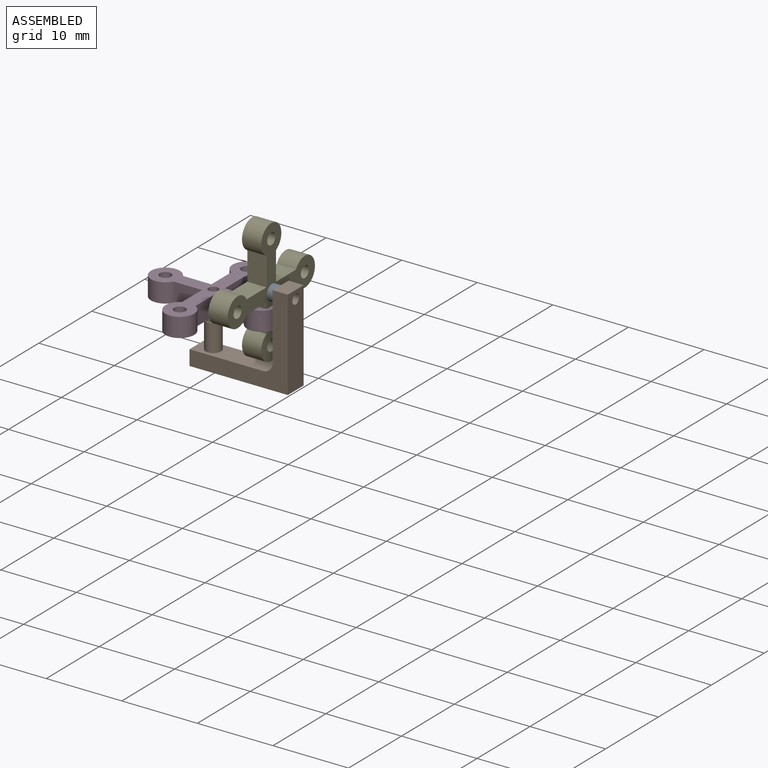
[diagram: assembled view]
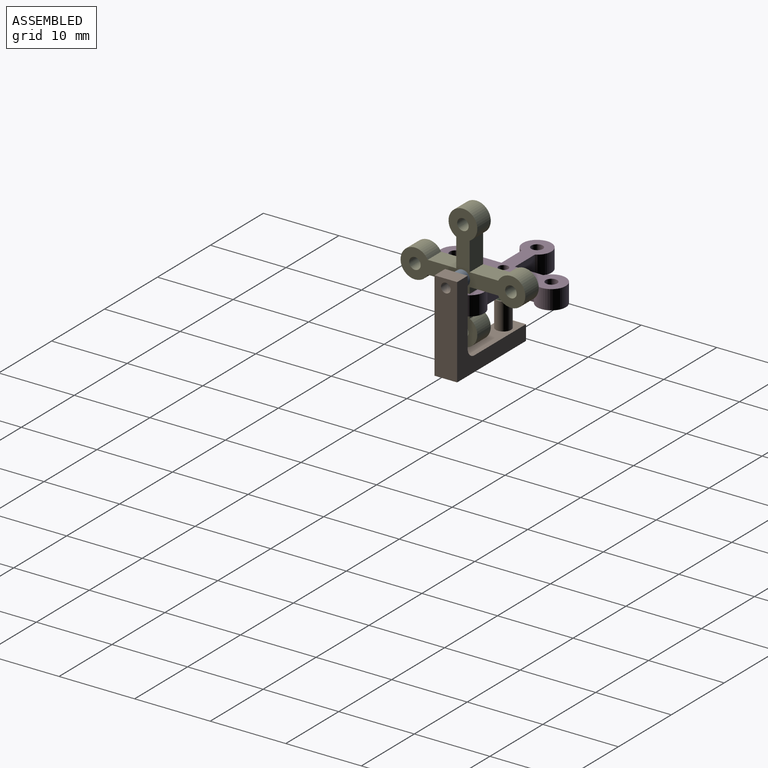
[diagram: assembled view, second angle]
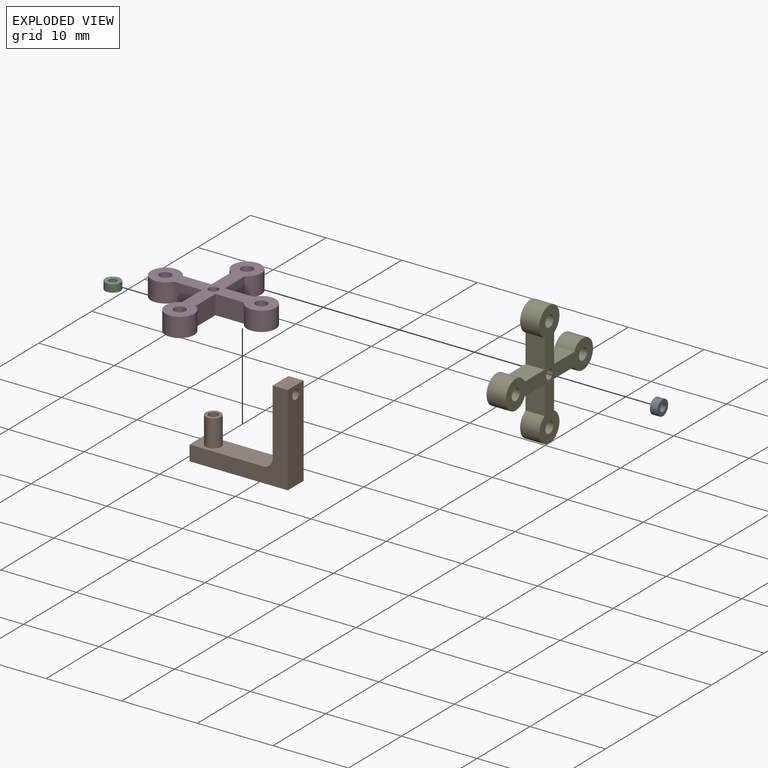
[diagram: exploded view]
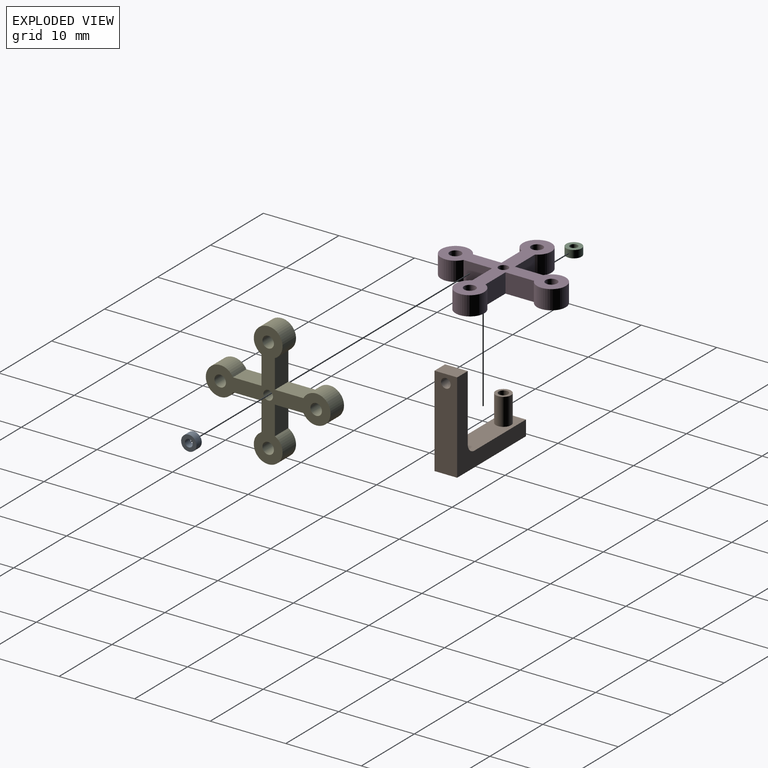
[diagram: exploded view, second angle]
ASSEMBLY  parts=5 mates=5
PART A: 4 faces, bbox 2x2x1 mm
  f0: cylinder r=0.51mm len=1.02mm, axis (0,0,-1), area 3.2mm2, adj f2,f3
  f1: cylinder r=1.02mm len=2.03mm, axis (0,0,-1), area 6.4mm2, adj f2,f3
  f2: plane 2.03x2.03mm, normal (0,0,1), area 2.4mm2, adj f0,f1
  f3: plane 2.03x2.03mm, normal (0,0,-1), area 2.4mm2, adj f0,f1
PART B: 13 faces, bbox 13x3x12 mm
  f0: plane 9.73x3mm, normal (0,0,1), area 25.9mm2, adj f2,f3,f4,f9,f12
  f1: plane 12x3mm, normal (1,0,0), area 34.7mm2, adj f2,f4,f5,f7,f8
  f2: plane 13x12mm, normal (0,1,0), area 46.3mm2, adj f0,f1,f3,f5,f6,f7,f12
  f3: plane 3x2mm, normal (-1,0,0), area 6mm2, adj f0,f2,f4,f5
  f4: plane 13x12mm, normal (0,-1,0), area 46.3mm2, adj f0,f1,f3,f5,f6,f7,f12
  f5: plane 13x3mm, normal (0,0,-1), area 37.7mm2, adj f1,f2,f3,f4,f11
  f6: plane 8.73x3mm, normal (-1,0,0), area 24.9mm2, adj f2,f4,f7,f8,f12
  f7: plane 3x2mm, normal (0,0,1), area 6mm2, adj f1,f2,f4,f6
  f8: cylinder r=0.64mm len=2mm, axis (-1,0,0), area 8mm2, adj f1,f6
  f9: cylinder r=1.02mm len=3.59mm, axis (0,0,-1), area 22.9mm2, adj f0,f10
  f10: plane 2.03x2.03mm, normal (0,0,1), area 2mm2, adj f9,f11
  f11: cylinder r=0.64mm len=5.59mm, axis (0,0,1), area 22.3mm2, adj f5,f10
  f12: cylinder r=1.27mm len=3mm, axis (0,-1,0), area 6mm2, adj f0,f2,f4,f6
PART C: same geometry as A
PART D: 19 faces, bbox 16.5x16.5x2.5 mm
  f0: plane 3.78x2.54mm, normal (0,1,0), area 9.6mm2, adj f3,f8,f9,f12
  f1: plane 3.78x2.54mm, normal (0,-1,0), area 9.6mm2, adj f4,f8,f9,f12
  f2: plane 3.78x2.54mm, normal (1,0,0), area 9.6mm2, adj f7,f8,f9,f13
  f3: plane 3.78x2.54mm, normal (-1,0,0), area 9.6mm2, adj f0,f8,f9,f13
  f4: plane 3.78x2.54mm, normal (-1,0,0), area 9.6mm2, adj f1,f8,f9,f14
  f5: plane 3.78x2.54mm, normal (1,0,0), area 9.6mm2, adj f6,f8,f9,f14
  f6: plane 3.78x2.54mm, normal (0,-1,0), area 9.6mm2, adj f5,f8,f9,f11
  f7: plane 3.78x2.54mm, normal (0,1,0), area 9.6mm2, adj f2,f8,f9,f11
  f8: plane 16.51x16.51mm, normal (0,0,1), area 66mm2, adj f0,f1,f2,f3,f4,f5,f6,f7
  f9: plane 16.51x16.51mm, normal (0,0,-1), area 66mm2, adj f0,f1,f2,f3,f4,f5,f6,f7
  f10: cylinder r=0.64mm len=2.54mm, axis (0,0,1), area 10.1mm2, adj f8,f9
  f11: cylinder r=1.91mm len=3.81mm, axis (0,0,1), area 25.7mm2, adj f6,f7,f8,f9
  f12: cylinder r=1.91mm len=3.81mm, axis (0,0,1), area 25.7mm2, adj f0,f1,f8,f9
  f13: cylinder r=1.91mm len=3.81mm, axis (0,0,1), area 25.7mm2, adj f2,f3,f8,f9
  f14: cylinder r=1.91mm len=3.81mm, axis (0,0,1), area 25.7mm2, adj f4,f5,f8,f9
  f15: cylinder r=0.76mm len=2.54mm, axis (0,0,1), area 12.2mm2, adj f8,f9
  f16: cylinder r=0.76mm len=2.54mm, axis (0,0,1), area 12.2mm2, adj f8,f9
  f17: cylinder r=0.76mm len=2.54mm, axis (0,0,1), area 12.2mm2, adj f8,f9
  f18: cylinder r=0.76mm len=2.54mm, axis (0,0,1), area 12.2mm2, adj f8,f9
PART E: same geometry as D
PLACE A rot(axis=(0,-1,0),90deg) t=(-7.78,5.21,4.18)mm
PLACE B rot(axis=(-1,0,0),0deg) t=(-12.15,5.21,-6.71)mm
PLACE C t=(-16.54,5.21,-1.05)mm
PLACE D rot(axis=(0,0,1),90deg) t=(-16.54,5.21,-0.08)mm
PLACE E rot(axis=(0.58,-0.58,-0.58),120deg) t=(-8.88,5.21,4.18)mm
MATE cylindrical D.f10 <-> C.f0  axis (0,0,-1) through (-16.54,5.21,-0.08)mm
MATE cylindrical A.f0 <-> B.f8  axis (1,0,0) through (-8.28,5.21,4.18)mm
MATE cylindrical E.f10 <-> A.f0  axis (1,0,0) through (-8.88,5.21,4.18)mm
MATE cylindrical C.f0 <-> B.f9  axis (0,0,-1) through (-16.54,5.21,-1.05)mm
MATE cylindrical D.f10 <-> C.f1  axis (0,0,-1) through (-16.54,5.21,-0.08)mm
